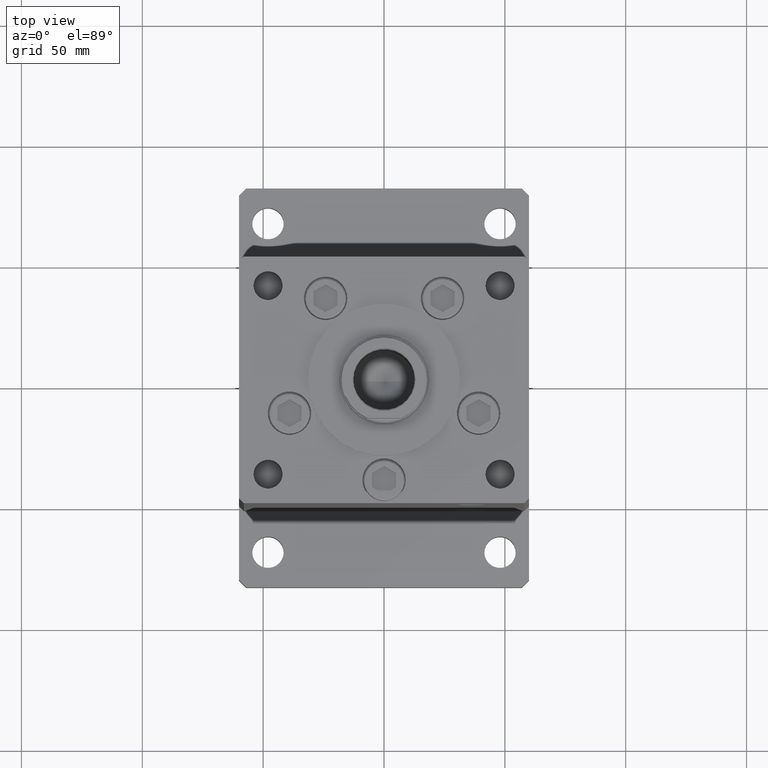
[diagram: clean part render]
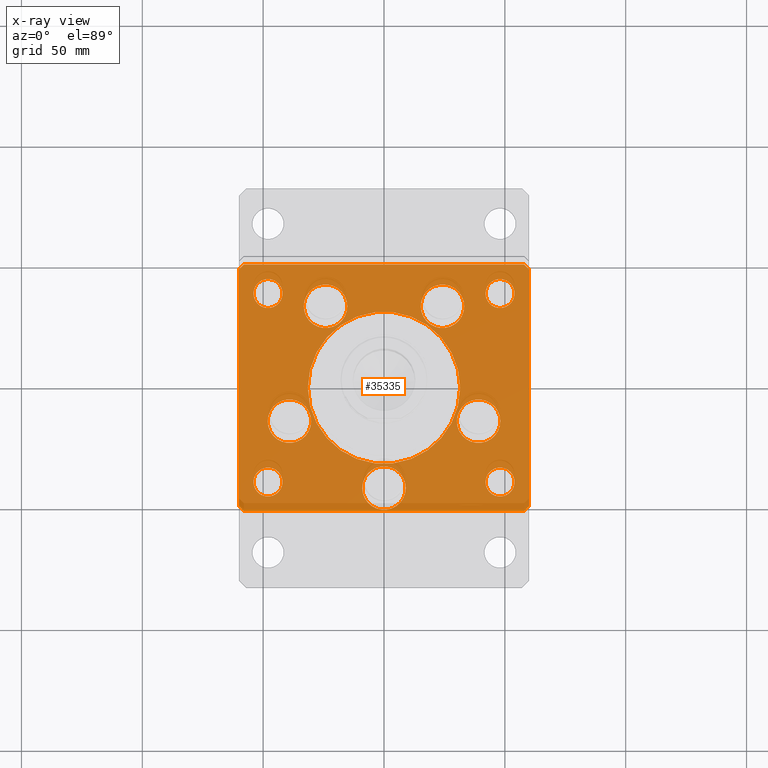
[diagram: x-ray — body ghosted, one internal face saturated and labeled with its STEP entity id]
A machine part, top view, then the same camera in x-ray: the body is ghosted and one INTERNAL B-rep face — a face not visible from any outside direction — is saturated and labeled: STEP entity #35335.
In plain terms, the highlighted planar face has unit normal (0, 0, -1).
Its self-contained STEP definition (entity closure, byte-faithful):
#307 = DIRECTION ( 'NONE',  ( 1.000000000000000000, 0.000000000000000000, 0.000000000000000000 ) ) ;
#1505 = EDGE_CURVE ( 'NONE', #17682, #53564, #51555, .T. ) ;
#1547 = CARTESIAN_POINT ( 'NONE',  ( 15.19288941894911105, 33.71875000000000711, 0.000000000000000000 ) ) ;
#1599 = CARTESIAN_POINT ( 'NONE',  ( -57.99999999999997868, -51.00000000000001421, 0.000000000000000000 ) ) ;
#1732 = CARTESIAN_POINT ( 'NONE',  ( 5.082284216461515748E-15, -41.50000000000000000, 0.000000000000000000 ) ) ;
#1916 = ORIENTED_EDGE ( 'NONE', *, *, #24273, .T. ) ;
#2286 = CARTESIAN_POINT ( 'NONE',  ( 41.99999999999999289, -38.99999999999999289, 0.000000000000000000 ) ) ;
#2436 = DIRECTION ( 'NONE',  ( 0.000000000000000000, 0.000000000000000000, 1.000000000000000000 ) ) ;
#2808 = LINE ( 'NONE', #36940, #14301 ) ;
#2813 = CARTESIAN_POINT ( 'NONE',  ( -15.19288941894912170, 33.71875000000000000, 0.000000000000000000 ) ) ;
#2844 = CIRCLE ( 'NONE', #13255, 6.000000000000005329 ) ;
#2898 = EDGE_LOOP ( 'NONE', ( #52679, #17370 ) ) ;
#2957 = DIRECTION ( 'NONE',  ( 0.000000000000000000, -0.000000000000000000, -1.000000000000000000 ) ) ;
#3046 = VECTOR ( 'NONE', #43758, 1000.000000000000000 ) ;
#3099 = AXIS2_PLACEMENT_3D ( 'NONE', #4031, #52121, #53391 ) ;
#3116 = EDGE_LOOP ( 'NONE', ( #10061, #43122 ) ) ;
#3775 = VERTEX_POINT ( 'NONE', #44961 ) ;
#4031 = CARTESIAN_POINT ( 'NONE',  ( -24.19288941894912170, 33.71875000000000000, 0.000000000000000000 ) ) ;
#4293 = CARTESIAN_POINT ( 'NONE',  ( 60.00000000000001421, -48.99999999999999289, 0.000000000000000000 ) ) ;
#4574 = EDGE_CURVE ( 'NONE', #43835, #23243, #43036, .T. ) ;
#4632 = CIRCLE ( 'NONE', #23715, 6.000000000000005329 ) ;
#4711 = CIRCLE ( 'NONE', #12522, 9.000000000000001776 ) ;
#5218 = LINE ( 'NONE', #46438, #41065 ) ;
#5717 = VECTOR ( 'NONE', #42547, 1000.000000000000000 ) ;
#5736 = CARTESIAN_POINT ( 'NONE',  ( -60.00000000000000000, -49.00000000000000000, 0.000000000000000000 ) ) ;
#6196 = EDGE_LOOP ( 'NONE', ( #24444, #45541 ) ) ;
#6359 = CARTESIAN_POINT ( 'NONE',  ( 60.00000000000001421, -48.99999999999999289, 0.000000000000000000 ) ) ;
#6436 = CARTESIAN_POINT ( 'NONE',  ( -54.00000000000000711, -39.00000000000000000, 0.000000000000000000 ) ) ;
#6439 = DIRECTION ( 'NONE',  ( 0.000000000000000000, -0.000000000000000000, -1.000000000000000000 ) ) ;
#6536 = FACE_BOUND ( 'NONE', #32717, .T. ) ;
#7214 = DIRECTION ( 'NONE',  ( 1.000000000000000000, 0.000000000000000000, 0.000000000000000000 ) ) ;
#7223 = VERTEX_POINT ( 'NONE', #25718 ) ;
#7933 = CARTESIAN_POINT ( 'NONE',  ( 58.00000000000000000, -51.00000000000000711, 0.000000000000000000 ) ) ;
#7948 = DIRECTION ( 'NONE',  ( 0.000000000000000000, -0.000000000000000000, -1.000000000000000000 ) ) ;
#8236 = VERTEX_POINT ( 'NONE', #18609 ) ;
#8245 = EDGE_LOOP ( 'NONE', ( #40385, #36579 ) ) ;
#8385 = EDGE_LOOP ( 'NONE', ( #28335, #18984 ) ) ;
#9115 = CIRCLE ( 'NONE', #13447, 6.000000000000005329 ) ;
#9182 = DIRECTION ( 'NONE',  ( 1.000000000000000000, 0.000000000000000000, 0.000000000000000000 ) ) ;
#9386 = AXIS2_PLACEMENT_3D ( 'NONE', #15924, #35997, #36787 ) ;
#9450 = EDGE_CURVE ( 'NONE', #53564, #22554, #33034, .T. ) ;
#10061 = ORIENTED_EDGE ( 'NONE', *, *, #12838, .T. ) ;
#10215 = DIRECTION ( 'NONE',  ( -0.7071067811865451302, -0.7071067811865500152, 0.000000000000000000 ) ) ;
#10456 = ORIENTED_EDGE ( 'NONE', *, *, #17205, .T. ) ;
#10632 = VECTOR ( 'NONE', #36449, 1000.000000000000000 ) ;
#10679 = EDGE_CURVE ( 'NONE', #26908, #35889, #28880, .T. ) ;
#10726 = EDGE_CURVE ( 'NONE', #47719, #48201, #4632, .T. ) ;
#11004 = CARTESIAN_POINT ( 'NONE',  ( -48.00000000000000000, 39.00000000000000000, 0.000000000000000000 ) ) ;
#11100 = EDGE_CURVE ( 'NONE', #51758, #7223, #40177, .T. ) ;
#11138 = FACE_BOUND ( 'NONE', #2898, .T. ) ;
#11289 = DIRECTION ( 'NONE',  ( 0.000000000000000000, -0.000000000000000000, -1.000000000000000000 ) ) ;
#11673 = VERTEX_POINT ( 'NONE', #17465 ) ;
#11855 = EDGE_LOOP ( 'NONE', ( #25639, #47648 ) ) ;
#11861 = AXIS2_PLACEMENT_3D ( 'NONE', #37343, #20813, #29218 ) ;
#11893 = DIRECTION ( 'NONE',  ( 1.000000000000000000, 0.000000000000000000, 0.000000000000000000 ) ) ;
#12016 = CARTESIAN_POINT ( 'NONE',  ( 54.00000000000000711, 38.99999999999999289, 0.000000000000000000 ) ) ;
#12065 = DIRECTION ( 'NONE',  ( 1.000000000000000000, 0.000000000000000000, 0.000000000000000000 ) ) ;
#12343 = ORIENTED_EDGE ( 'NONE', *, *, #40962, .T. ) ;
#12421 = DIRECTION ( 'NONE',  ( 1.000000000000000000, 1.196361017915039486E-16, 0.000000000000000000 ) ) ;
#12522 = AXIS2_PLACEMENT_3D ( 'NONE', #33824, #7948, #14814 ) ;
#12676 = AXIS2_PLACEMENT_3D ( 'NONE', #25170, #20554, #53119 ) ;
#12838 = EDGE_CURVE ( 'NONE', #40236, #11673, #4711, .T. ) ;
#12994 = EDGE_CURVE ( 'NONE', #22554, #37463, #5218, .T. ) ;
#13255 = AXIS2_PLACEMENT_3D ( 'NONE', #36658, #48886, #45900 ) ;
#13447 = AXIS2_PLACEMENT_3D ( 'NONE', #33396, #49953, #32855 ) ;
#13533 = EDGE_CURVE ( 'NONE', #26951, #3775, #2808, .T. ) ;
#13647 = CARTESIAN_POINT ( 'NONE',  ( 33.19288941894911460, 33.71875000000000711, 0.000000000000000000 ) ) ;
#13767 = VERTEX_POINT ( 'NONE', #37139 ) ;
#13819 = VERTEX_POINT ( 'NONE', #26812 ) ;
#14089 = EDGE_CURVE ( 'NONE', #37463, #26951, #31015, .T. ) ;
#14125 = ORIENTED_EDGE ( 'NONE', *, *, #39244, .T. ) ;
#14214 = DIRECTION ( 'NONE',  ( 1.000000000000000000, 0.000000000000000000, 0.000000000000000000 ) ) ;
#14301 = VECTOR ( 'NONE', #36403, 1000.000000000000000 ) ;
#14661 = FACE_BOUND ( 'NONE', #3116, .T. ) ;
#14788 = EDGE_CURVE ( 'NONE', #32040, #13819, #38511, .T. ) ;
#14814 = DIRECTION ( 'NONE',  ( 1.000000000000000000, 0.000000000000000000, 0.000000000000000000 ) ) ;
#14943 = CIRCLE ( 'NONE', #48739, 9.000000000000000000 ) ;
#15149 = AXIS2_PLACEMENT_3D ( 'NONE', #20274, #2957, #11893 ) ;
#15159 = CARTESIAN_POINT ( 'NONE',  ( 0.000000000000000000, -1.387778780781445676E-14, 0.000000000000000000 ) ) ;
#15348 = CARTESIAN_POINT ( 'NONE',  ( 0.000000000000000000, -1.387778780781445676E-14, 0.000000000000000000 ) ) ;
#15924 = CARTESIAN_POINT ( 'NONE',  ( -39.12657522565562829, -13.83333333333333925, 0.000000000000000000 ) ) ;
#16156 = CARTESIAN_POINT ( 'NONE',  ( 39.12657522565562829, -13.83333333333332860, 0.000000000000000000 ) ) ;
#16915 = VERTEX_POINT ( 'NONE', #12016 ) ;
#17205 = EDGE_CURVE ( 'NONE', #25900, #17682, #30347, .T. ) ;
#17370 = ORIENTED_EDGE ( 'NONE', *, *, #51568, .F. ) ;
#17465 = CARTESIAN_POINT ( 'NONE',  ( -30.12657522565562829, -13.83333333333333748, 0.000000000000000000 ) ) ;
#17625 = AXIS2_PLACEMENT_3D ( 'NONE', #52496, #24274, #12065 ) ;
#17659 = AXIS2_PLACEMENT_3D ( 'NONE', #19857, #36392, #35598 ) ;
#17682 = VERTEX_POINT ( 'NONE', #40499 ) ;
#17840 = DIRECTION ( 'NONE',  ( 0.000000000000000000, -0.000000000000000000, -1.000000000000000000 ) ) ;
#17931 = DIRECTION ( 'NONE',  ( 0.7071067811865474617, -0.7071067811865474617, 0.000000000000000000 ) ) ;
#18070 = EDGE_CURVE ( 'NONE', #22044, #16915, #24788, .T. ) ;
#18109 = CARTESIAN_POINT ( 'NONE',  ( 24.19288941894911460, 33.71875000000000711, 0.000000000000000000 ) ) ;
#18252 = CARTESIAN_POINT ( 'NONE',  ( -31.50000000000000000, -1.002015039050029328E-14, 0.000000000000000000 ) ) ;
#18364 = ORIENTED_EDGE ( 'NONE', *, *, #41521, .T. ) ;
#18518 = EDGE_CURVE ( 'NONE', #16915, #22044, #29114, .T. ) ;
#18609 = CARTESIAN_POINT ( 'NONE',  ( -57.99999999999999289, 50.99999999999997868, 0.000000000000000000 ) ) ;
#18721 = FACE_BOUND ( 'NONE', #8385, .T. ) ;
#18826 = AXIS2_PLACEMENT_3D ( 'NONE', #18109, #17840, #9182 ) ;
#18984 = ORIENTED_EDGE ( 'NONE', *, *, #10679, .T. ) ;
#19255 = CARTESIAN_POINT ( 'NONE',  ( 0.000000000000000000, 0.000000000000000000, 0.000000000000000000 ) ) ;
#19673 = DIRECTION ( 'NONE',  ( 0.000000000000000000, 0.000000000000000000, 1.000000000000000000 ) ) ;
#19857 = CARTESIAN_POINT ( 'NONE',  ( 5.082284216461515748E-15, -41.50000000000000000, 0.000000000000000000 ) ) ;
#20274 = CARTESIAN_POINT ( 'NONE',  ( -48.00000000000000000, -39.00000000000000000, 0.000000000000000000 ) ) ;
#20294 = ORIENTED_EDGE ( 'NONE', *, *, #10726, .F. ) ;
#20324 = EDGE_CURVE ( 'NONE', #35889, #26908, #44804, .T. ) ;
#20554 = DIRECTION ( 'NONE',  ( -0.000000000000000000, 0.000000000000000000, 1.000000000000000000 ) ) ;
#20645 = CARTESIAN_POINT ( 'NONE',  ( 30.12657522565562829, -13.83333333333332860, 0.000000000000000000 ) ) ;
#20813 = DIRECTION ( 'NONE',  ( -0.000000000000000000, 0.000000000000000000, 1.000000000000000000 ) ) ;
#20948 = EDGE_CURVE ( 'NONE', #7223, #51758, #39564, .T. ) ;
#21315 = DIRECTION ( 'NONE',  ( 0.000000000000000000, -0.000000000000000000, -1.000000000000000000 ) ) ;
#21421 = AXIS2_PLACEMENT_3D ( 'NONE', #1732, #47276, #31243 ) ;
#22026 = AXIS2_PLACEMENT_3D ( 'NONE', #48451, #6439, #47650 ) ;
#22044 = VERTEX_POINT ( 'NONE', #27322 ) ;
#22554 = VERTEX_POINT ( 'NONE', #7933 ) ;
#22796 = FACE_BOUND ( 'NONE', #6196, .T. ) ;
#22921 = CIRCLE ( 'NONE', #22026, 6.000000000000005329 ) ;
#23073 = PLANE ( 'NONE',  #50343 ) ;
#23243 = VERTEX_POINT ( 'NONE', #35146 ) ;
#23306 = ORIENTED_EDGE ( 'NONE', *, *, #1505, .T. ) ;
#23715 = AXIS2_PLACEMENT_3D ( 'NONE', #11004, #31581, #40533 ) ;
#23794 = EDGE_CURVE ( 'NONE', #48201, #47719, #50849, .T. ) ;
#24174 = CARTESIAN_POINT ( 'NONE',  ( 48.00000000000000000, 38.99999999999999289, 0.000000000000000000 ) ) ;
#24273 = EDGE_CURVE ( 'NONE', #39946, #50201, #49099, .T. ) ;
#24274 = DIRECTION ( 'NONE',  ( 0.000000000000000000, -0.000000000000000000, -1.000000000000000000 ) ) ;
#24444 = ORIENTED_EDGE ( 'NONE', *, *, #18518, .F. ) ;
#24788 = CIRCLE ( 'NONE', #36885, 6.000000000000005329 ) ;
#25126 = VERTEX_POINT ( 'NONE', #2286 ) ;
#25170 = CARTESIAN_POINT ( 'NONE',  ( 48.00000000000000000, 38.99999999999999289, 0.000000000000000000 ) ) ;
#25639 = ORIENTED_EDGE ( 'NONE', *, *, #50542, .T. ) ;
#25718 = CARTESIAN_POINT ( 'NONE',  ( -8.999999999999994671, -41.50000000000000000, 0.000000000000000000 ) ) ;
#25900 = VERTEX_POINT ( 'NONE', #36420 ) ;
#26299 = ORIENTED_EDGE ( 'NONE', *, *, #12994, .T. ) ;
#26455 = VECTOR ( 'NONE', #17931, 1000.000000000000114 ) ;
#26812 = CARTESIAN_POINT ( 'NONE',  ( -41.99999999999999289, -39.00000000000000000, 0.000000000000000000 ) ) ;
#26908 = VERTEX_POINT ( 'NONE', #13647 ) ;
#26951 = VERTEX_POINT ( 'NONE', #42637 ) ;
#27046 = VECTOR ( 'NONE', #10215, 1000.000000000000114 ) ;
#27322 = CARTESIAN_POINT ( 'NONE',  ( 41.99999999999999289, 38.99999999999999289, 0.000000000000000000 ) ) ;
#28066 = DIRECTION ( 'NONE',  ( 1.000000000000000000, 0.000000000000000000, 0.000000000000000000 ) ) ;
#28280 = ORIENTED_EDGE ( 'NONE', *, *, #14089, .T. ) ;
#28286 = EDGE_CURVE ( 'NONE', #11673, #40236, #41417, .T. ) ;
#28335 = ORIENTED_EDGE ( 'NONE', *, *, #20324, .T. ) ;
#28880 = CIRCLE ( 'NONE', #17625, 9.000000000000001776 ) ;
#29114 = CIRCLE ( 'NONE', #12676, 6.000000000000005329 ) ;
#29185 = CARTESIAN_POINT ( 'NONE',  ( 39.12657522565562829, -13.83333333333332860, 0.000000000000000000 ) ) ;
#29218 = DIRECTION ( 'NONE',  ( 1.000000000000000000, 0.000000000000000000, 0.000000000000000000 ) ) ;
#29299 = DIRECTION ( 'NONE',  ( -0.000000000000000000, 0.000000000000000000, 1.000000000000000000 ) ) ;
#30074 = ORIENTED_EDGE ( 'NONE', *, *, #9450, .T. ) ;
#30291 = CARTESIAN_POINT ( 'NONE',  ( 9.000000000000005329, -41.50000000000000000, 0.000000000000000000 ) ) ;
#30347 = LINE ( 'NONE', #38201, #5717 ) ;
#30651 = FACE_BOUND ( 'NONE', #36756, .T. ) ;
#31015 = LINE ( 'NONE', #6359, #3046 ) ;
#31243 = DIRECTION ( 'NONE',  ( 1.000000000000000000, 0.000000000000000000, 0.000000000000000000 ) ) ;
#31270 = CARTESIAN_POINT ( 'NONE',  ( -24.19288941894912170, 33.71875000000000000, 0.000000000000000000 ) ) ;
#31581 = DIRECTION ( 'NONE',  ( -0.000000000000000000, 0.000000000000000000, 1.000000000000000000 ) ) ;
#32040 = VERTEX_POINT ( 'NONE', #6436 ) ;
#32717 = EDGE_LOOP ( 'NONE', ( #1916, #14125 ) ) ;
#32855 = DIRECTION ( 'NONE',  ( 1.000000000000000000, 0.000000000000000000, 0.000000000000000000 ) ) ;
#33034 = LINE ( 'NONE', #49582, #39212 ) ;
#33257 = DIRECTION ( 'NONE',  ( 1.000000000000000000, 0.000000000000000000, 0.000000000000000000 ) ) ;
#33308 = ORIENTED_EDGE ( 'NONE', *, *, #23794, .F. ) ;
#33396 = CARTESIAN_POINT ( 'NONE',  ( -48.00000000000000000, -39.00000000000000000, 0.000000000000000000 ) ) ;
#33824 = CARTESIAN_POINT ( 'NONE',  ( -39.12657522565562829, -13.83333333333333925, 0.000000000000000000 ) ) ;
#34134 = AXIS2_PLACEMENT_3D ( 'NONE', #15159, #2436, #51799 ) ;
#34217 = DIRECTION ( 'NONE',  ( 0.7071067811865474617, 0.7071067811865474617, 0.000000000000000000 ) ) ;
#34735 = DIRECTION ( 'NONE',  ( 1.000000000000000000, 0.000000000000000000, 0.000000000000000000 ) ) ;
#34915 = VERTEX_POINT ( 'NONE', #51168 ) ;
#34962 = ORIENTED_EDGE ( 'NONE', *, *, #20948, .T. ) ;
#35146 = CARTESIAN_POINT ( 'NONE',  ( -33.19288941894912170, 33.71875000000000000, 0.000000000000000000 ) ) ;
#35335 = ADVANCED_FACE ( 'NONE', ( #11138, #48284, #18721, #6536, #51829, #14661, #22796, #47740, #30651, #39054, #35785 ), #23073, .T. ) ;
#35497 = ORIENTED_EDGE ( 'NONE', *, *, #11100, .T. ) ;
#35521 = CARTESIAN_POINT ( 'NONE',  ( -48.12657522565562829, -13.83333333333333925, 0.000000000000000000 ) ) ;
#35598 = DIRECTION ( 'NONE',  ( 1.000000000000000000, 0.000000000000000000, 0.000000000000000000 ) ) ;
#35785 = FACE_BOUND ( 'NONE', #11855, .T. ) ;
#35889 = VERTEX_POINT ( 'NONE', #1547 ) ;
#35997 = DIRECTION ( 'NONE',  ( 0.000000000000000000, -0.000000000000000000, -1.000000000000000000 ) ) ;
#36300 = ORIENTED_EDGE ( 'NONE', *, *, #13533, .T. ) ;
#36392 = DIRECTION ( 'NONE',  ( 0.000000000000000000, -0.000000000000000000, -1.000000000000000000 ) ) ;
#36403 = DIRECTION ( 'NONE',  ( -0.7071067811865487940, 0.7071067811865463515, 0.000000000000000000 ) ) ;
#36420 = CARTESIAN_POINT ( 'NONE',  ( -60.00000000000000000, 48.99999999999995737, 0.000000000000000000 ) ) ;
#36449 = DIRECTION ( 'NONE',  ( -1.000000000000000000, -2.392722035830079958E-16, 0.000000000000000000 ) ) ;
#36579 = ORIENTED_EDGE ( 'NONE', *, *, #51795, .T. ) ;
#36658 = CARTESIAN_POINT ( 'NONE',  ( 48.00000000000000000, -38.99999999999999289, 0.000000000000000000 ) ) ;
#36756 = EDGE_LOOP ( 'NONE', ( #33308, #20294 ) ) ;
#36779 = EDGE_CURVE ( 'NONE', #13767, #45873, #43429, .T. ) ;
#36787 = DIRECTION ( 'NONE',  ( 1.000000000000000000, 0.000000000000000000, 0.000000000000000000 ) ) ;
#36885 = AXIS2_PLACEMENT_3D ( 'NONE', #24174, #29299, #307 ) ;
#36940 = CARTESIAN_POINT ( 'NONE',  ( 59.99999999999994316, 49.00000000000000000, 0.000000000000000000 ) ) ;
#37139 = CARTESIAN_POINT ( 'NONE',  ( 31.50000000000000000, -1.387778780781445676E-14, 0.000000000000000000 ) ) ;
#37343 = CARTESIAN_POINT ( 'NONE',  ( -48.00000000000000000, 39.00000000000000000, 0.000000000000000000 ) ) ;
#37463 = VERTEX_POINT ( 'NONE', #4293 ) ;
#38201 = CARTESIAN_POINT ( 'NONE',  ( -60.00000000000000000, 48.99999999999995737, 0.000000000000000000 ) ) ;
#38511 = CIRCLE ( 'NONE', #15149, 6.000000000000005329 ) ;
#39054 = FACE_OUTER_BOUND ( 'NONE', #50068, .T. ) ;
#39126 = CARTESIAN_POINT ( 'NONE',  ( -54.00000000000000711, 39.00000000000000000, 0.000000000000000000 ) ) ;
#39212 = VECTOR ( 'NONE', #12421, 1000.000000000000000 ) ;
#39244 = EDGE_CURVE ( 'NONE', #50201, #39946, #44243, .T. ) ;
#39564 = CIRCLE ( 'NONE', #21421, 9.000000000000000000 ) ;
#39589 = ORIENTED_EDGE ( 'NONE', *, *, #4574, .T. ) ;
#39593 = DIRECTION ( 'NONE',  ( -0.000000000000000000, 0.000000000000000000, 1.000000000000000000 ) ) ;
#39946 = VERTEX_POINT ( 'NONE', #20645 ) ;
#40177 = CIRCLE ( 'NONE', #17659, 9.000000000000000000 ) ;
#40236 = VERTEX_POINT ( 'NONE', #35521 ) ;
#40385 = ORIENTED_EDGE ( 'NONE', *, *, #42691, .T. ) ;
#40499 = CARTESIAN_POINT ( 'NONE',  ( -60.00000000000000000, -49.00000000000000000, 0.000000000000000000 ) ) ;
#40533 = DIRECTION ( 'NONE',  ( 1.000000000000000000, 0.000000000000000000, 0.000000000000000000 ) ) ;
#40962 = EDGE_CURVE ( 'NONE', #3775, #8236, #48669, .T. ) ;
#41065 = VECTOR ( 'NONE', #34217, 1000.000000000000114 ) ;
#41417 = CIRCLE ( 'NONE', #9386, 9.000000000000001776 ) ;
#41521 = EDGE_CURVE ( 'NONE', #8236, #25900, #42197, .T. ) ;
#41684 = AXIS2_PLACEMENT_3D ( 'NONE', #15348, #19673, #7214 ) ;
#42197 = LINE ( 'NONE', #43003, #27046 ) ;
#42250 = CARTESIAN_POINT ( 'NONE',  ( 48.12657522565562829, -13.83333333333332682, 0.000000000000000000 ) ) ;
#42547 = DIRECTION ( 'NONE',  ( 0.000000000000000000, -1.000000000000000000, 0.000000000000000000 ) ) ;
#42637 = CARTESIAN_POINT ( 'NONE',  ( 59.99999999999994316, 49.00000000000000000, 0.000000000000000000 ) ) ;
#42691 = EDGE_CURVE ( 'NONE', #34915, #25126, #2844, .T. ) ;
#42857 = ORIENTED_EDGE ( 'NONE', *, *, #43921, .T. ) ;
#43003 = CARTESIAN_POINT ( 'NONE',  ( -57.99999999999999289, 50.99999999999997868, 0.000000000000000000 ) ) ;
#43036 = CIRCLE ( 'NONE', #3099, 9.000000000000000000 ) ;
#43122 = ORIENTED_EDGE ( 'NONE', *, *, #28286, .T. ) ;
#43429 = CIRCLE ( 'NONE', #41684, 31.50000000000000000 ) ;
#43758 = DIRECTION ( 'NONE',  ( -7.080503983578803823E-16, 1.000000000000000000, 0.000000000000000000 ) ) ;
#43835 = VERTEX_POINT ( 'NONE', #2813 ) ;
#43921 = EDGE_CURVE ( 'NONE', #23243, #43835, #14943, .T. ) ;
#44243 = CIRCLE ( 'NONE', #52039, 9.000000000000001776 ) ;
#44804 = CIRCLE ( 'NONE', #18826, 9.000000000000001776 ) ;
#44961 = CARTESIAN_POINT ( 'NONE',  ( 57.99999999999993605, 51.00000000000000711, 0.000000000000000000 ) ) ;
#45541 = ORIENTED_EDGE ( 'NONE', *, *, #18070, .F. ) ;
#45684 = CARTESIAN_POINT ( 'NONE',  ( 57.99999999999993605, 51.00000000000000711, 0.000000000000000000 ) ) ;
#45873 = VERTEX_POINT ( 'NONE', #18252 ) ;
#45900 = DIRECTION ( 'NONE',  ( 1.000000000000000000, 0.000000000000000000, 0.000000000000000000 ) ) ;
#46438 = CARTESIAN_POINT ( 'NONE',  ( 58.00000000000000000, -51.00000000000000711, 0.000000000000000000 ) ) ;
#47276 = DIRECTION ( 'NONE',  ( 0.000000000000000000, -0.000000000000000000, -1.000000000000000000 ) ) ;
#47648 = ORIENTED_EDGE ( 'NONE', *, *, #14788, .T. ) ;
#47650 = DIRECTION ( 'NONE',  ( 1.000000000000000000, 0.000000000000000000, 0.000000000000000000 ) ) ;
#47719 = VERTEX_POINT ( 'NONE', #39126 ) ;
#47740 = FACE_BOUND ( 'NONE', #8245, .T. ) ;
#47825 = DIRECTION ( 'NONE',  ( 0.000000000000000000, -0.000000000000000000, -1.000000000000000000 ) ) ;
#48201 = VERTEX_POINT ( 'NONE', #53444 ) ;
#48246 = AXIS2_PLACEMENT_3D ( 'NONE', #16156, #11289, #28066 ) ;
#48284 = FACE_BOUND ( 'NONE', #52791, .T. ) ;
#48451 = CARTESIAN_POINT ( 'NONE',  ( 48.00000000000000000, -38.99999999999999289, 0.000000000000000000 ) ) ;
#48669 = LINE ( 'NONE', #45684, #10632 ) ;
#48739 = AXIS2_PLACEMENT_3D ( 'NONE', #31270, #47825, #14214 ) ;
#48886 = DIRECTION ( 'NONE',  ( 0.000000000000000000, -0.000000000000000000, -1.000000000000000000 ) ) ;
#49099 = CIRCLE ( 'NONE', #48246, 9.000000000000001776 ) ;
#49582 = CARTESIAN_POINT ( 'NONE',  ( -57.99999999999997868, -51.00000000000001421, 0.000000000000000000 ) ) ;
#49953 = DIRECTION ( 'NONE',  ( 0.000000000000000000, -0.000000000000000000, -1.000000000000000000 ) ) ;
#50068 = EDGE_LOOP ( 'NONE', ( #23306, #30074, #26299, #28280, #36300, #12343, #18364, #10456 ) ) ;
#50201 = VERTEX_POINT ( 'NONE', #42250 ) ;
#50343 = AXIS2_PLACEMENT_3D ( 'NONE', #19255, #39593, #34735 ) ;
#50542 = EDGE_CURVE ( 'NONE', #13819, #32040, #9115, .T. ) ;
#50849 = CIRCLE ( 'NONE', #11861, 6.000000000000005329 ) ;
#51168 = CARTESIAN_POINT ( 'NONE',  ( 54.00000000000000711, -38.99999999999999289, 0.000000000000000000 ) ) ;
#51555 = LINE ( 'NONE', #5736, #26455 ) ;
#51568 = EDGE_CURVE ( 'NONE', #45873, #13767, #53201, .T. ) ;
#51726 = EDGE_LOOP ( 'NONE', ( #34962, #35497 ) ) ;
#51758 = VERTEX_POINT ( 'NONE', #30291 ) ;
#51795 = EDGE_CURVE ( 'NONE', #25126, #34915, #22921, .T. ) ;
#51799 = DIRECTION ( 'NONE',  ( 1.000000000000000000, 0.000000000000000000, 0.000000000000000000 ) ) ;
#51829 = FACE_BOUND ( 'NONE', #51726, .T. ) ;
#52039 = AXIS2_PLACEMENT_3D ( 'NONE', #29185, #21315, #33257 ) ;
#52121 = DIRECTION ( 'NONE',  ( 0.000000000000000000, -0.000000000000000000, -1.000000000000000000 ) ) ;
#52496 = CARTESIAN_POINT ( 'NONE',  ( 24.19288941894911460, 33.71875000000000711, 0.000000000000000000 ) ) ;
#52679 = ORIENTED_EDGE ( 'NONE', *, *, #36779, .F. ) ;
#52791 = EDGE_LOOP ( 'NONE', ( #42857, #39589 ) ) ;
#53119 = DIRECTION ( 'NONE',  ( 1.000000000000000000, 0.000000000000000000, 0.000000000000000000 ) ) ;
#53201 = CIRCLE ( 'NONE', #34134, 31.50000000000000000 ) ;
#53391 = DIRECTION ( 'NONE',  ( 1.000000000000000000, 0.000000000000000000, 0.000000000000000000 ) ) ;
#53444 = CARTESIAN_POINT ( 'NONE',  ( -41.99999999999999289, 39.00000000000000000, 0.000000000000000000 ) ) ;
#53564 = VERTEX_POINT ( 'NONE', #1599 ) ;